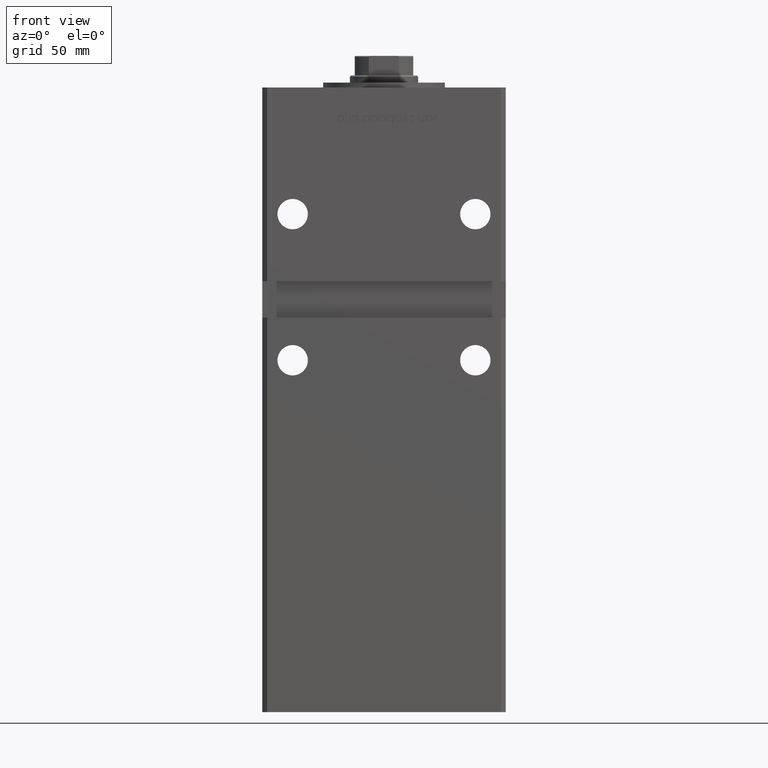
[diagram: clean part render]
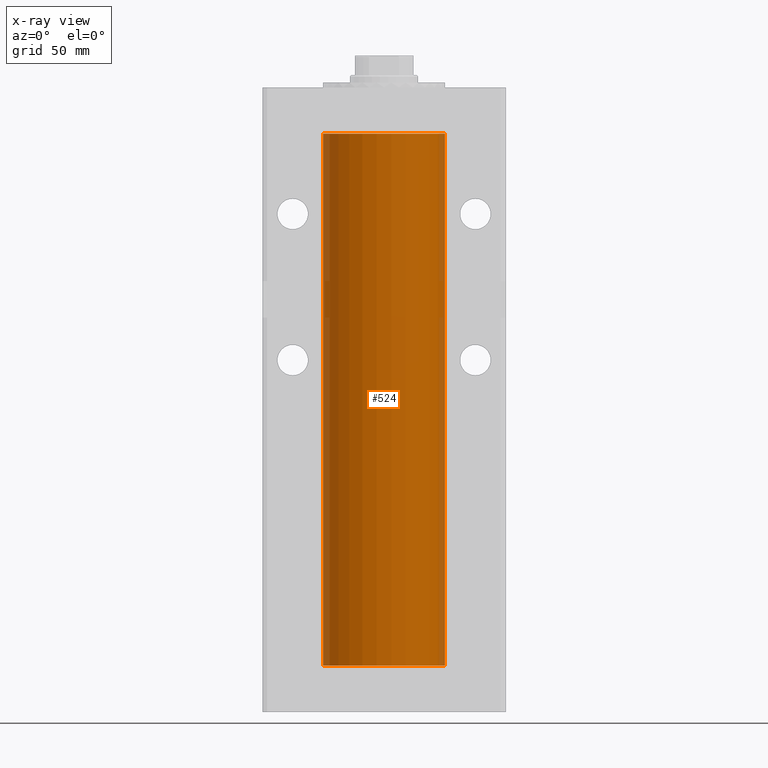
[diagram: x-ray — body ghosted, one internal face saturated and labeled with its STEP entity id]
A machine part, front view, then the same camera in x-ray: the body is ghosted and one INTERNAL B-rep face — a face not visible from any outside direction — is saturated and labeled: STEP entity #524.
In plain terms, the highlighted cylindrical surface (partial cylindrical patch) has radius 25 mm, axis along (-0, -0, -1).
Its self-contained STEP definition (entity closure, byte-faithful):
#524 = ADVANCED_FACE ( 'NONE', ( #45941 ), #9071, .F. ) ;
#2477 = ORIENTED_EDGE ( 'NONE', *, *, #17661, .F. ) ;
#2850 = DIRECTION ( 'NONE',  ( 1.000000000000000000, 0.000000000000000000, 0.000000000000000000 ) ) ;
#3199 = EDGE_LOOP ( 'NONE', ( #40093, #22190, #2477, #15395 ) ) ;
#3295 = AXIS2_PLACEMENT_3D ( 'NONE', #48060, #35945, #2850 ) ;
#4326 = VECTOR ( 'NONE', #30119, 1000.000000000000000 ) ;
#4490 = DIRECTION ( 'NONE',  ( -0.000000000000000000, -0.000000000000000000, -1.000000000000000000 ) ) ;
#9071 = CYLINDRICAL_SURFACE ( 'NONE', #26101, 25.00000000000000000 ) ;
#10149 = AXIS2_PLACEMENT_3D ( 'NONE', #12198, #32662, #49616 ) ;
#10450 = VERTEX_POINT ( 'NONE', #32572 ) ;
#11826 = CARTESIAN_POINT ( 'NONE',  ( -25.00000000000000000, 0.000000000000000000, 0.000000000000000000 ) ) ;
#12056 = CARTESIAN_POINT ( 'NONE',  ( -25.00000000000000000, 0.000000000000000000, 218.5000000000000000 ) ) ;
#12198 = CARTESIAN_POINT ( 'NONE',  ( 0.000000000000000000, 0.000000000000000000, 218.5000000000000000 ) ) ;
#15395 = ORIENTED_EDGE ( 'NONE', *, *, #28971, .F. ) ;
#15954 = EDGE_CURVE ( 'NONE', #42716, #10450, #49670, .T. ) ;
#17661 = EDGE_CURVE ( 'NONE', #18426, #43264, #49706, .T. ) ;
#18426 = VERTEX_POINT ( 'NONE', #11826 ) ;
#20921 = DIRECTION ( 'NONE',  ( -1.000000000000000000, 0.000000000000000000, 0.000000000000000000 ) ) ;
#22190 = ORIENTED_EDGE ( 'NONE', *, *, #35846, .T. ) ;
#24150 = VECTOR ( 'NONE', #44596, 1000.000000000000000 ) ;
#25269 = CARTESIAN_POINT ( 'NONE',  ( 25.00000000000000000, 3.061616997868383043E-15, 218.5000000000000000 ) ) ;
#26101 = AXIS2_PLACEMENT_3D ( 'NONE', #33299, #4490, #20921 ) ;
#28971 = EDGE_CURVE ( 'NONE', #42716, #18426, #32762, .T. ) ;
#30119 = DIRECTION ( 'NONE',  ( -0.000000000000000000, -0.000000000000000000, -1.000000000000000000 ) ) ;
#32231 = CARTESIAN_POINT ( 'NONE',  ( -25.00000000000000000, 0.000000000000000000, 218.5000000000000000 ) ) ;
#32572 = CARTESIAN_POINT ( 'NONE',  ( 25.00000000000000000, 3.061616997868383043E-15, 218.5000000000000000 ) ) ;
#32662 = DIRECTION ( 'NONE',  ( -0.000000000000000000, 0.000000000000000000, 1.000000000000000000 ) ) ;
#32762 = LINE ( 'NONE', #32231, #24150 ) ;
#33299 = CARTESIAN_POINT ( 'NONE',  ( 0.000000000000000000, 0.000000000000000000, 218.5000000000000000 ) ) ;
#35846 = EDGE_CURVE ( 'NONE', #10450, #43264, #38180, .T. ) ;
#35945 = DIRECTION ( 'NONE',  ( -0.000000000000000000, 0.000000000000000000, 1.000000000000000000 ) ) ;
#38180 = LINE ( 'NONE', #25269, #4326 ) ;
#40093 = ORIENTED_EDGE ( 'NONE', *, *, #15954, .T. ) ;
#40663 = CARTESIAN_POINT ( 'NONE',  ( 25.00000000000000000, 3.061616997868383043E-15, 0.000000000000000000 ) ) ;
#42716 = VERTEX_POINT ( 'NONE', #12056 ) ;
#43264 = VERTEX_POINT ( 'NONE', #40663 ) ;
#44596 = DIRECTION ( 'NONE',  ( -0.000000000000000000, -0.000000000000000000, -1.000000000000000000 ) ) ;
#45941 = FACE_OUTER_BOUND ( 'NONE', #3199, .T. ) ;
#48060 = CARTESIAN_POINT ( 'NONE',  ( 0.000000000000000000, 0.000000000000000000, 0.000000000000000000 ) ) ;
#49616 = DIRECTION ( 'NONE',  ( 1.000000000000000000, 0.000000000000000000, 0.000000000000000000 ) ) ;
#49670 = CIRCLE ( 'NONE', #10149, 25.00000000000000000 ) ;
#49706 = CIRCLE ( 'NONE', #3295, 25.00000000000000000 ) ;